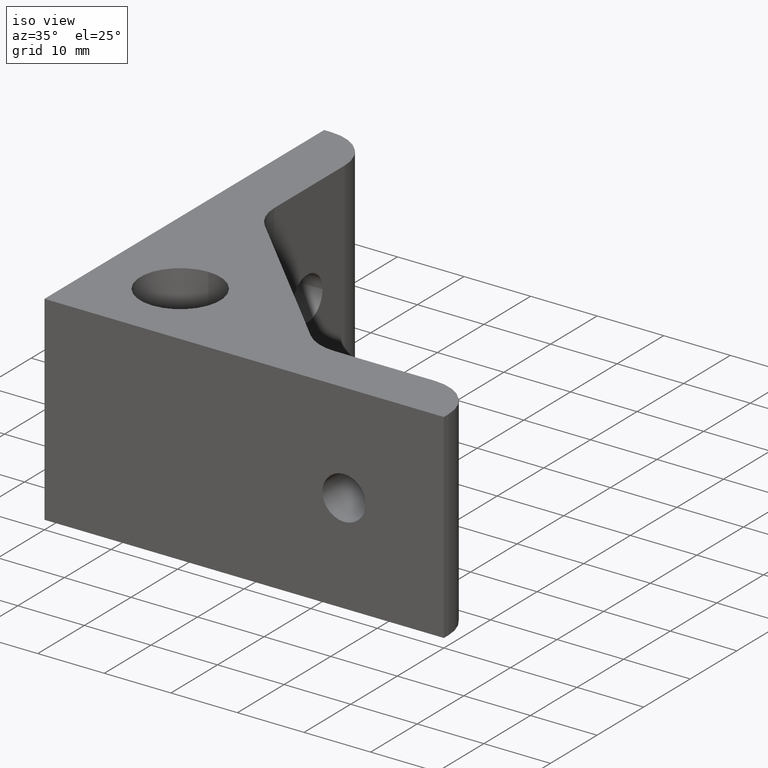
[diagram: clean part render]
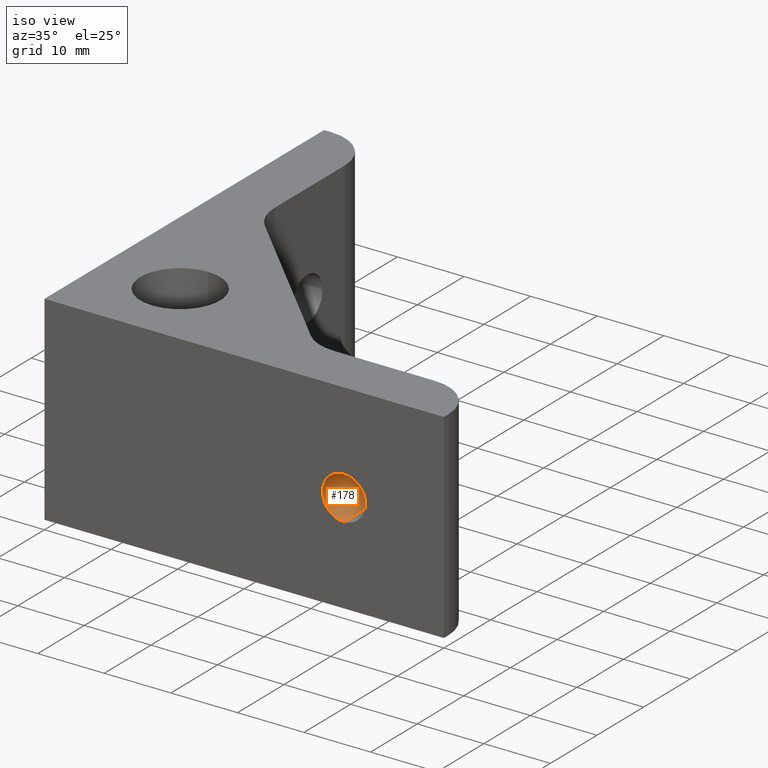
[diagram: same view with one face highlighted and labeled with its STEP entity id]
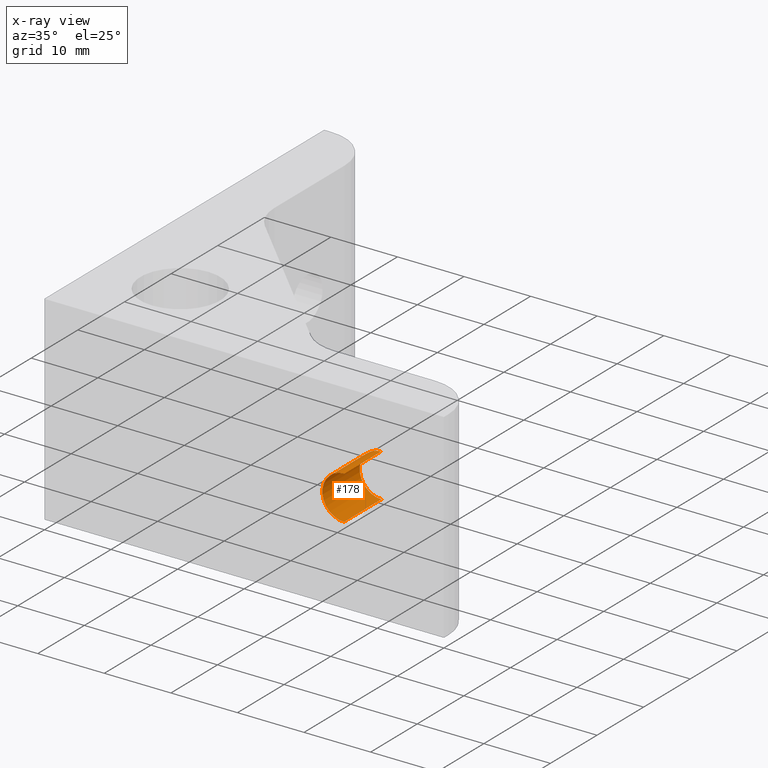
[diagram: x-ray of the same camera — body ghosted, the highlighted face saturated]
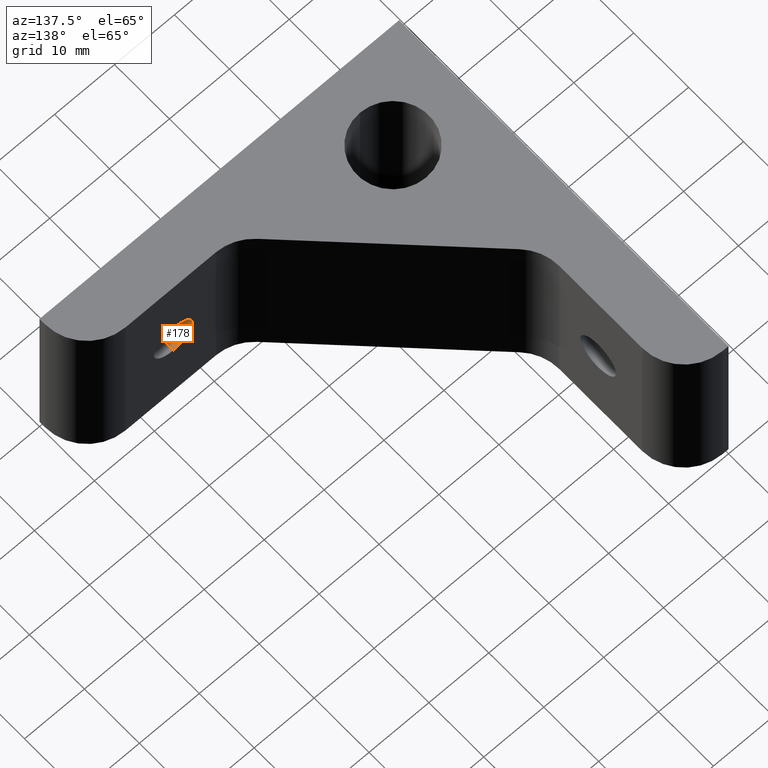
[diagram: same view with one face highlighted and labeled with its STEP entity id]
A machine part, iso view. The second image highlights one B-rep face of the part: STEP entity #178.
The next image is the same camera in x-ray: the body ghosted, the highlighted face saturated — about 1% of this face is hidden behind the body in this view.
A second angle (auxiliary view) of the same face is appended — the face is thin or edge-on in the first view.
In plain terms, the highlighted cylindrical surface (edge-blend (fillet) strip) has radius 3.25 mm, axis along (-0, 1, 0).
Its self-contained STEP definition (entity closure, byte-faithful):
#14 = ORIENTED_EDGE ( 'NONE', *, *, #290, .T. ) ;
#152 = CARTESIAN_POINT ( 'NONE',  ( -15.00000000000000000, 8.000000000000000000, 11.75000000000000000 ) ) ;
#159 = CARTESIAN_POINT ( 'NONE',  ( -15.00000000000000000, 0.0000000000000000000, 11.75000000000000000 ) ) ;
#164 = CARTESIAN_POINT ( 'NONE',  ( -15.00000000000000000, 0.0000000000000000000, 18.25000000000000000 ) ) ;
#174 = CARTESIAN_POINT ( 'NONE',  ( -15.00000000000000000, 8.000000000000000000, 18.25000000000000000 ) ) ;
#178 = ADVANCED_FACE ( 'NONE', ( #611 ), #612, .F. ) ;
#272 = DIRECTION ( 'NONE',  ( 0.0000000000000000000, 0.0000000000000000000, 1.000000000000000000 ) ) ;
#273 = DIRECTION ( 'NONE',  ( 0.0000000000000000000, -1.000000000000000000, -0.0000000000000000000 ) ) ;
#274 = CARTESIAN_POINT ( 'NONE',  ( -15.00000000000000000, 0.0000000000000000000, 15.00000000000000000 ) ) ;
#290 = EDGE_CURVE ( 'NONE', #435, #430, #694, .T. ) ;
#292 = EDGE_CURVE ( 'NONE', #435, #463, #693, .T. ) ;
#293 = EDGE_CURVE ( 'NONE', #420, #463, #689, .T. ) ;
#294 = EDGE_CURVE ( 'NONE', #430, #420, #690, .T. ) ;
#318 = DIRECTION ( 'NONE',  ( 0.0000000000000000000, 0.0000000000000000000, 1.000000000000000000 ) ) ;
#319 = CARTESIAN_POINT ( 'NONE',  ( -15.00000000000000000, 0.0000000000000000000, 11.75000000000000000 ) ) ;
#323 = DIRECTION ( 'NONE',  ( -0.0000000000000000000, 1.000000000000000000, 0.0000000000000000000 ) ) ;
#325 = CARTESIAN_POINT ( 'NONE',  ( -15.00000000000000000, 8.000000000000000000, 15.00000000000000000 ) ) ;
#328 = DIRECTION ( 'NONE',  ( -0.0000000000000000000, 1.000000000000000000, 0.0000000000000000000 ) ) ;
#329 = CARTESIAN_POINT ( 'NONE',  ( -15.00000000000000000, 0.0000000000000000000, 18.25000000000000000 ) ) ;
#330 = DIRECTION ( 'NONE',  ( -0.0000000000000000000, 1.000000000000000000, 0.0000000000000000000 ) ) ;
#397 = AXIS2_PLACEMENT_3D ( 'NONE', #442, #436, #443 ) ;
#420 = VERTEX_POINT ( 'NONE', #152 ) ;
#430 = VERTEX_POINT ( 'NONE', #159 ) ;
#435 = VERTEX_POINT ( 'NONE', #164 ) ;
#436 = DIRECTION ( 'NONE',  ( -0.0000000000000000000, 1.000000000000000000, 0.0000000000000000000 ) ) ;
#442 = CARTESIAN_POINT ( 'NONE',  ( -15.00000000000000000, 0.0000000000000000000, 15.00000000000000000 ) ) ;
#443 = DIRECTION ( 'NONE',  ( 0.0000000000000000000, 0.0000000000000000000, 1.000000000000000000 ) ) ;
#463 = VERTEX_POINT ( 'NONE', #174 ) ;
#489 = AXIS2_PLACEMENT_3D ( 'NONE', #274, #273, #272 ) ;
#491 = AXIS2_PLACEMENT_3D ( 'NONE', #325, #323, #318 ) ;
#562 = EDGE_LOOP ( 'NONE', ( #14, #634, #685, #687 ) ) ;
#611 = FACE_OUTER_BOUND ( 'NONE', #562, .T. ) ;
#612 = CYLINDRICAL_SURFACE ( 'NONE', #397, 3.249999999999999600 ) ;
#634 = ORIENTED_EDGE ( 'NONE', *, *, #294, .T. ) ;
#685 = ORIENTED_EDGE ( 'NONE', *, *, #293, .T. ) ;
#687 = ORIENTED_EDGE ( 'NONE', *, *, #292, .F. ) ;
#688 = VECTOR ( 'NONE', #330, 1000.000000000000000 ) ;
#689 = CIRCLE ( 'NONE', #491, 3.249999999999999600 ) ;
#690 = LINE ( 'NONE', #319, #688 ) ;
#691 = VECTOR ( 'NONE', #328, 1000.000000000000000 ) ;
#693 = LINE ( 'NONE', #329, #691 ) ;
#694 = CIRCLE ( 'NONE', #489, 3.249999999999999600 ) ;